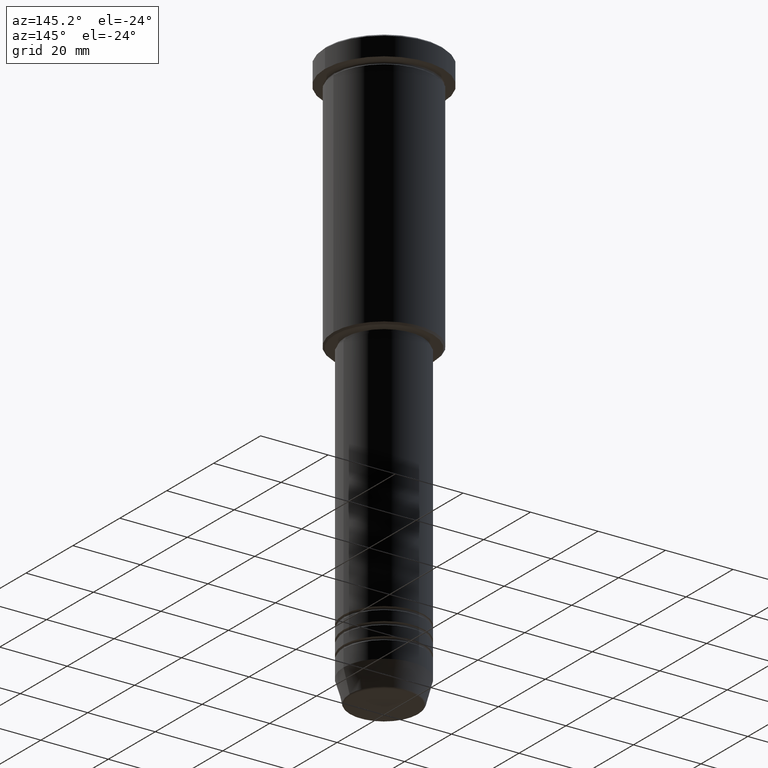
[diagram: clean part render]
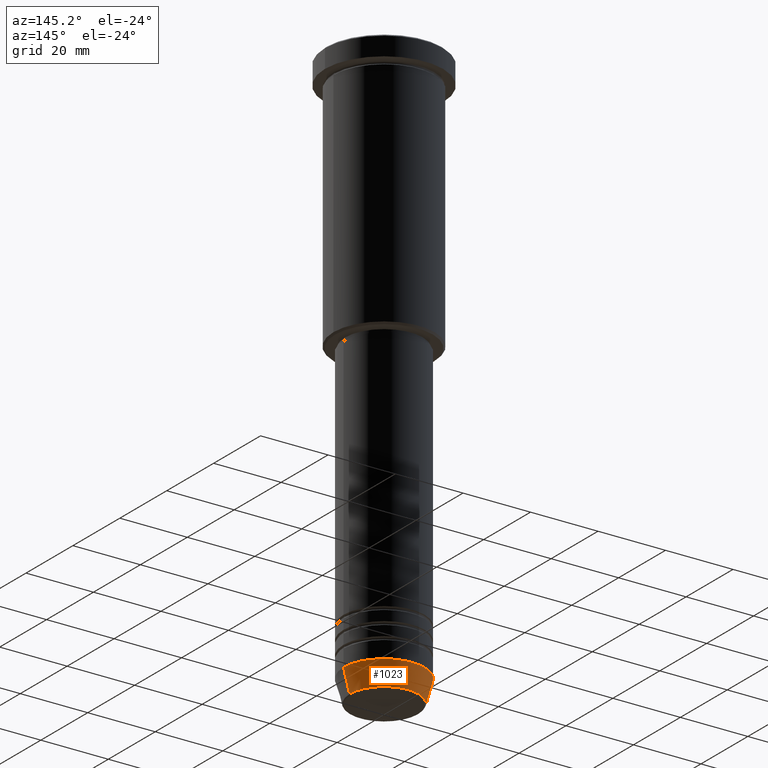
[diagram: same view with one face highlighted and labeled with its STEP entity id]
A machine part, auxiliary view. The second image highlights one B-rep face of the part: STEP entity #1023.
In plain terms, the highlighted conical surface has half-angle 15 deg.
Its self-contained STEP definition (entity closure, byte-faithful):
#11 = CIRCLE ( 'NONE', #111, 12.00000000000000000 ) ;
#22 = VERTEX_POINT ( 'NONE', #1027 ) ;
#69 = DIRECTION ( 'NONE',  ( -0.000000000000000000, -0.000000000000000000, 1.000000000000000000 ) ) ;
#93 = CARTESIAN_POINT ( 'NONE',  ( 0.000000000000000000, 0.000000000000000000, -163.9999999999999716 ) ) ;
#111 = AXIS2_PLACEMENT_3D ( 'NONE', #719, #264, #884 ) ;
#112 = ORIENTED_EDGE ( 'NONE', *, *, #1059, .F. ) ;
#130 = LINE ( 'NONE', #201, #1115 ) ;
#154 = DIRECTION ( 'NONE',  ( 1.000000000000000000, 0.000000000000000000, 0.000000000000000000 ) ) ;
#201 = CARTESIAN_POINT ( 'NONE',  ( -12.00000000000000000, 1.469576158976823947E-15, -163.9999999999999716 ) ) ;
#244 = CARTESIAN_POINT ( 'NONE',  ( 10.22365507213719127, 0.000000000000000000, -170.6294095225512422 ) ) ;
#264 = DIRECTION ( 'NONE',  ( -0.000000000000000000, -0.000000000000000000, 1.000000000000000000 ) ) ;
#273 = DIRECTION ( 'NONE',  ( -0.000000000000000000, -0.000000000000000000, 1.000000000000000000 ) ) ;
#305 = AXIS2_PLACEMENT_3D ( 'NONE', #93, #69, #154 ) ;
#306 = DIRECTION ( 'NONE',  ( 0.2588190451025213501, 0.000000000000000000, 0.9659258262890680902 ) ) ;
#450 = ORIENTED_EDGE ( 'NONE', *, *, #805, .F. ) ;
#475 = VECTOR ( 'NONE', #306, 1000.000000000000000 ) ;
#478 = DIRECTION ( 'NONE',  ( -0.2588190451025213501, 3.169619151431772337E-17, 0.9659258262890680902 ) ) ;
#508 = EDGE_LOOP ( 'NONE', ( #1064, #599, #112, #450 ) ) ;
#542 = DIRECTION ( 'NONE',  ( 1.000000000000000000, 0.000000000000000000, 0.000000000000000000 ) ) ;
#599 = ORIENTED_EDGE ( 'NONE', *, *, #817, .T. ) ;
#659 = CARTESIAN_POINT ( 'NONE',  ( 12.00000000000000000, 0.000000000000000000, -163.9999999999999716 ) ) ;
#664 = CARTESIAN_POINT ( 'NONE',  ( -10.22365507213719127, 1.360806402472382744E-15, -170.6294095225512422 ) ) ;
#665 = CARTESIAN_POINT ( 'NONE',  ( 12.00000000000000000, 0.000000000000000000, -163.9999999999999716 ) ) ;
#719 = CARTESIAN_POINT ( 'NONE',  ( 0.000000000000000000, 0.000000000000000000, -163.9999999999999716 ) ) ;
#765 = VERTEX_POINT ( 'NONE', #244 ) ;
#805 = EDGE_CURVE ( 'NONE', #765, #807, #925, .T. ) ;
#806 = CONICAL_SURFACE ( 'NONE', #305, 12.00000000000000000, 0.2617993877991500740 ) ;
#807 = VERTEX_POINT ( 'NONE', #659 ) ;
#817 = EDGE_CURVE ( 'NONE', #1178, #22, #130, .T. ) ;
#876 = FACE_OUTER_BOUND ( 'NONE', #508, .T. ) ;
#884 = DIRECTION ( 'NONE',  ( 1.000000000000000000, 0.000000000000000000, 0.000000000000000000 ) ) ;
#921 = AXIS2_PLACEMENT_3D ( 'NONE', #1166, #273, #542 ) ;
#925 = LINE ( 'NONE', #665, #475 ) ;
#999 = CIRCLE ( 'NONE', #921, 10.22365507213719127 ) ;
#1019 = EDGE_CURVE ( 'NONE', #765, #1178, #999, .T. ) ;
#1023 = ADVANCED_FACE ( 'NONE', ( #876 ), #806, .T. ) ;
#1027 = CARTESIAN_POINT ( 'NONE',  ( -12.00000000000000000, 1.469576158976823947E-15, -163.9999999999999716 ) ) ;
#1059 = EDGE_CURVE ( 'NONE', #807, #22, #11, .T. ) ;
#1064 = ORIENTED_EDGE ( 'NONE', *, *, #1019, .T. ) ;
#1115 = VECTOR ( 'NONE', #478, 1000.000000000000000 ) ;
#1166 = CARTESIAN_POINT ( 'NONE',  ( 0.000000000000000000, 0.000000000000000000, -170.6294095225512422 ) ) ;
#1178 = VERTEX_POINT ( 'NONE', #664 ) ;